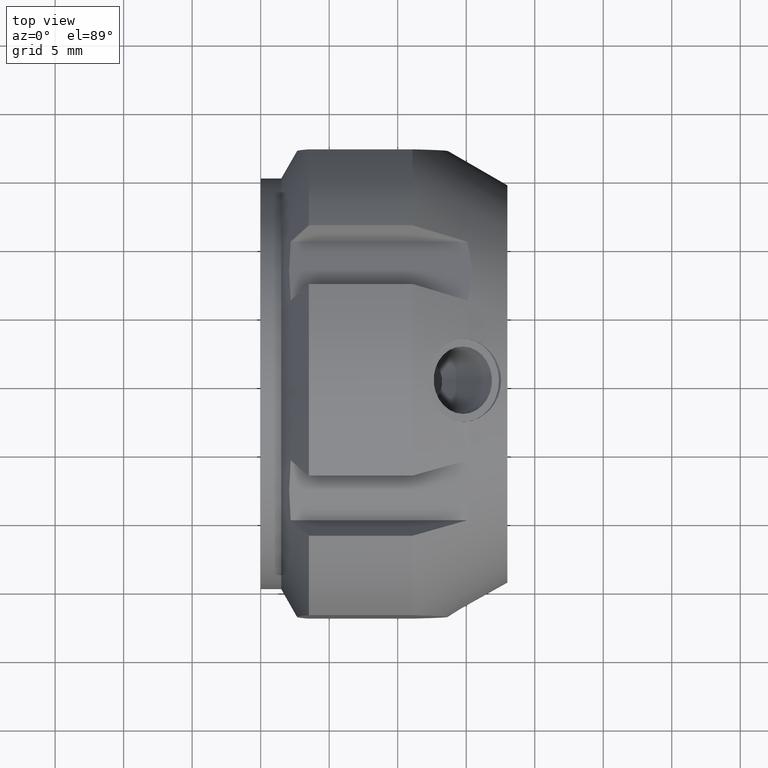
[diagram: clean part render]
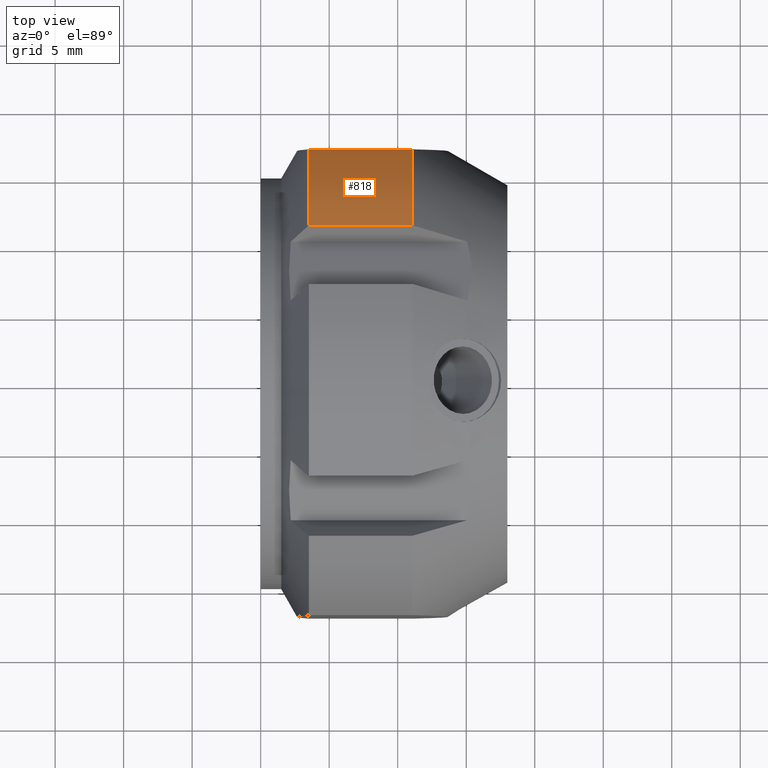
[diagram: same view with one face highlighted and labeled with its STEP entity id]
A machine part, top view. The second image highlights one B-rep face of the part: STEP entity #818.
In plain terms, the highlighted cylindrical surface (partial cylindrical patch) has radius 18.5 mm, axis along (1, 0, 0).
Its self-contained STEP definition (entity closure, byte-faithful):
#502=CARTESIAN_POINT('',(3.520725942163683,11.330214899372773,14.624507866387543));
#503=VERTEX_POINT('',#502);
#517=CARTESIAN_POINT('',(3.520725942163683,17.000000000000043,7.297259759663096));
#518=VERTEX_POINT('',#517);
#519=CARTESIAN_POINT('',(3.520725942163683,0.0,0.0));
#520=DIRECTION('',(1.0,0.0,0.0));
#521=DIRECTION('',(0.0,1.0,0.0));
#522=AXIS2_PLACEMENT_3D('',#519,#520,#521);
#523=CIRCLE('',#522,18.499999999999996);
#524=EDGE_CURVE('',#518,#503,#523,.T.);
#639=CARTESIAN_POINT('',(11.071796769724479,11.330214899372773,14.624507866387546));
#640=VERTEX_POINT('',#639);
#654=CARTESIAN_POINT('',(3.520725942163683,11.330214899372773,14.624507866387543));
#655=DIRECTION('',(1.0,0.0,0.0));
#656=VECTOR('',#655,7.551070827560796);
#657=LINE('',#654,#656);
#658=EDGE_CURVE('',#503,#640,#657,.T.);
#794=CARTESIAN_POINT('',(7.296261355944083,0.0,0.0));
#795=DIRECTION('',(1.0,0.0,0.0));
#796=DIRECTION('',(0.0,1.0,0.0));
#797=AXIS2_PLACEMENT_3D('',#794,#795,#796);
#798=CYLINDRICAL_SURFACE('',#797,18.499999999999996);
#799=ORIENTED_EDGE('',*,*,#658,.T.);
#800=CARTESIAN_POINT('',(11.071796769724482,17.000000000000043,7.297259759663101));
#801=VERTEX_POINT('',#800);
#802=CARTESIAN_POINT('',(11.071796769724482,0.0,0.0));
#803=DIRECTION('',(1.0,0.0,0.0));
#804=DIRECTION('',(0.0,1.0,0.0));
#805=AXIS2_PLACEMENT_3D('',#802,#803,#804);
#806=CIRCLE('',#805,18.5);
#807=EDGE_CURVE('',#801,#640,#806,.T.);
#808=ORIENTED_EDGE('',*,*,#807,.F.);
#809=CARTESIAN_POINT('',(11.071796769724482,17.000000000000043,7.297259759663096));
#810=DIRECTION('',(-1.0,0.0,0.0));
#811=VECTOR('',#810,7.5510708275608);
#812=LINE('',#809,#811);
#813=EDGE_CURVE('',#801,#518,#812,.T.);
#814=ORIENTED_EDGE('',*,*,#813,.T.);
#815=ORIENTED_EDGE('',*,*,#524,.T.);
#816=EDGE_LOOP('',(#799,#808,#814,#815));
#817=FACE_OUTER_BOUND('',#816,.T.);
#818=ADVANCED_FACE('',(#817),#798,.T.);